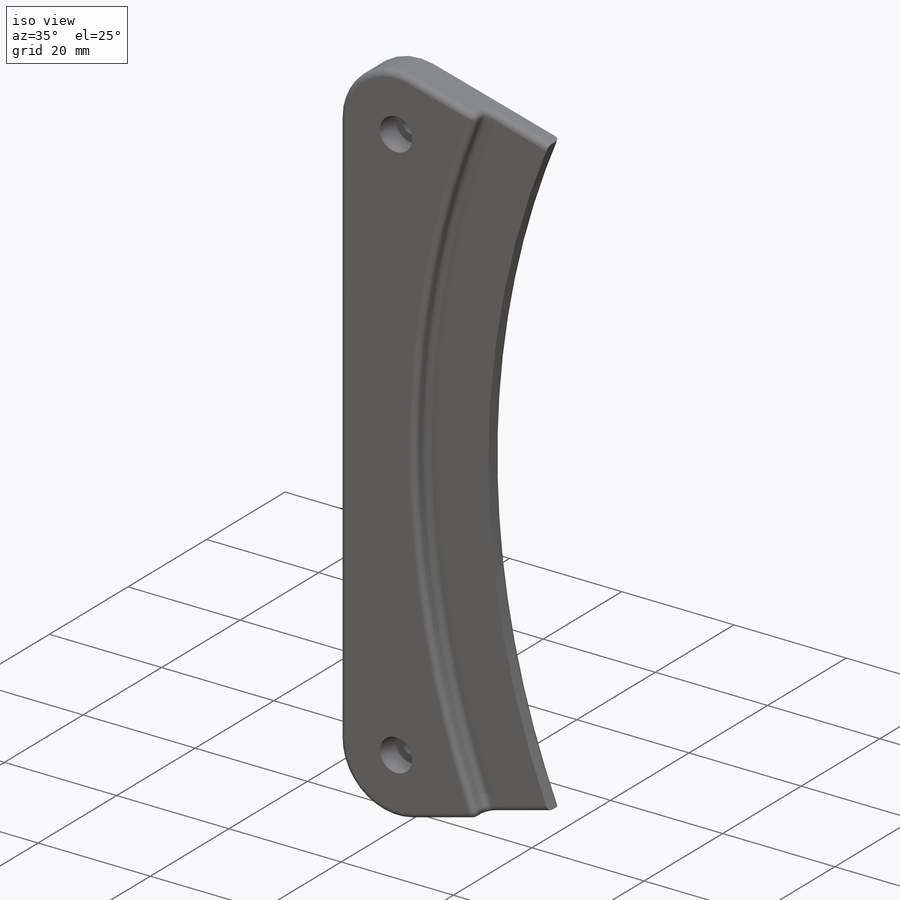
[diagram: iso view]
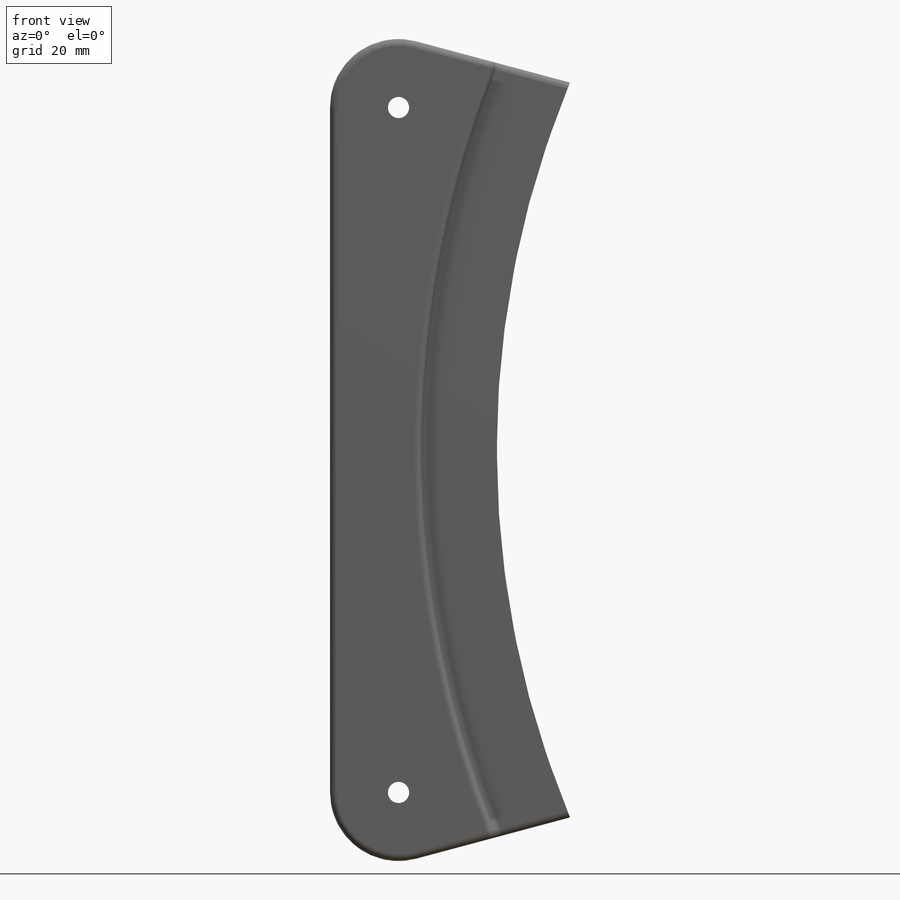
[diagram: front view]
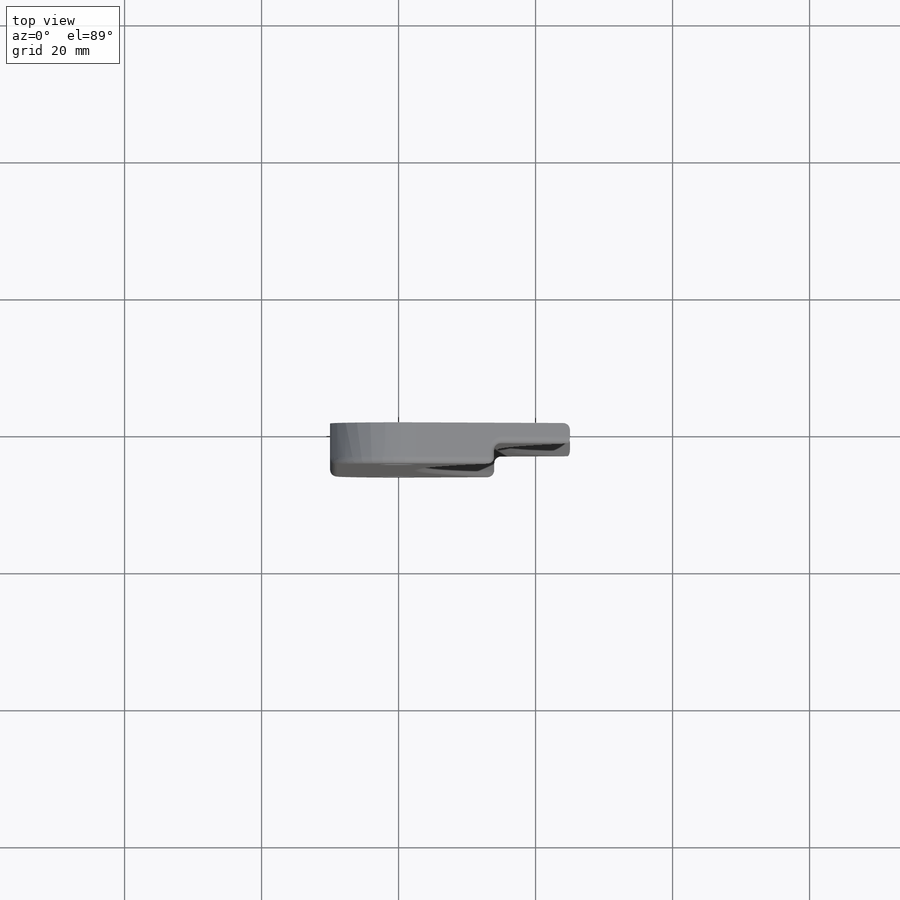
[diagram: top view]
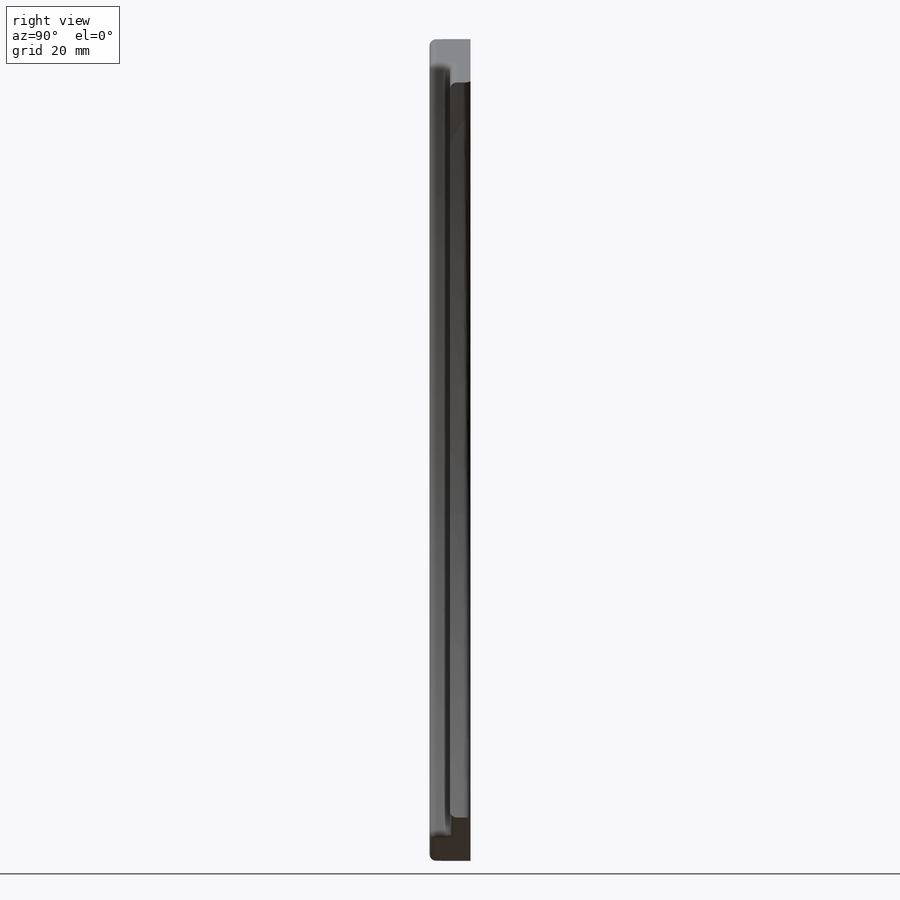
[diagram: right view]
SOLIDWORKS PART (.sldprt)
format: sldprt  version: not decoded by parser v0  size: 248,832 bytes
history: native  units: mm
features: sketch x5, extrude x2, cut_extrude x2, material x1, fillet x1 (+13 scaffold rows collapsed)
feature tree (24):
  scaffold x13  (default folders/planes/origin — collapsed)
  material  "Material <not specified>"
  sketch  "Assembly"  dims[c1.D2=10.0mm c1.D1=300.0mm c2.D2=100.0mm c2.D3=75.0mm c2.D4=~29.775247mm c3.D4=72.0deg c3.D5=9.0mm c3.D1=10.0mm]
  sketch  "Sketch3"  dims[c1.D2=10.0mm c1.D3=10.0mm c1.D4=~20.388265mm c2.D4=75.0deg c2.D5=100.0mm c2.D1=10.0mm]
  extrude  "Boss-Extrude2"  Depth=3mm
  sketch  "Sketch4"  dims[D1=1.0mm]
  extrude  "Boss-Extrude3"  Depth=3mm
  sketch  "Sketch5"  dims[D1=3.1mm]
  cut_extrude  "Cut-Extrude1"  Depth=3mm
  sketch  "Sketch6"  dims[D1=5.75mm]
  cut_extrude  "Cut-Extrude2"  Depth=2mm
  fillet  "Fillet1"  Radius=1mm
decode coverage: 10 of 10 modeling features carry decoded parameters
note: ~ marks probable driven/reference dimensions
note: suppression state not decoded; provenance and decode notes live in map.json
